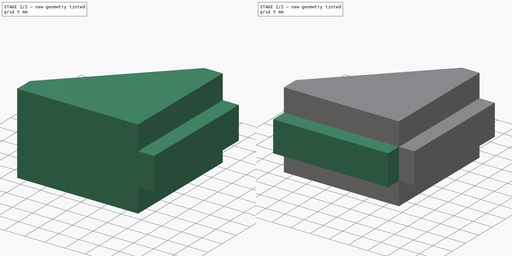
[diagram: build sequence overview — one tinted view per stage of 2, left to right]
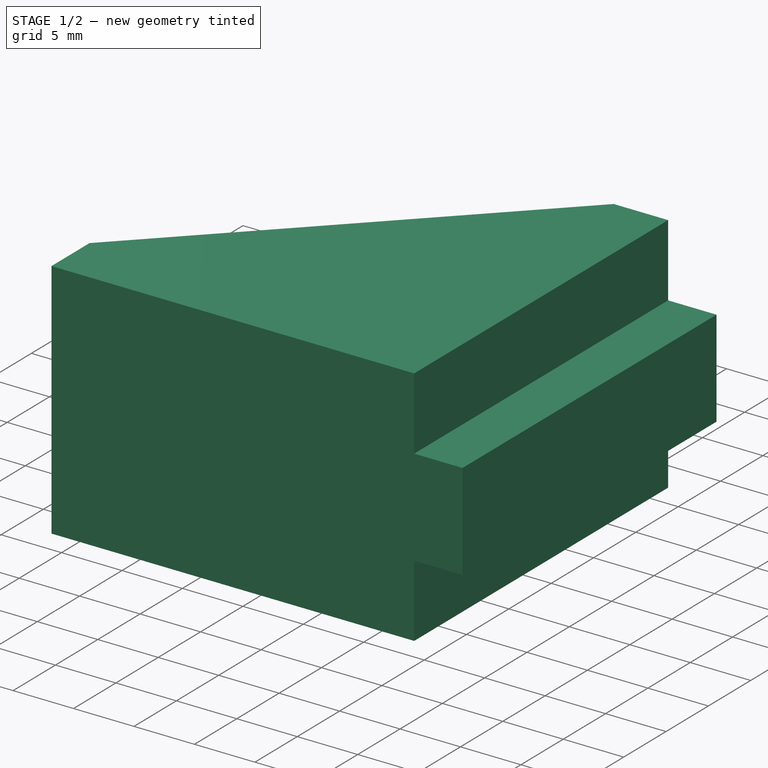
[diagram: stage 1 of 2 — iso view after this stage's code; geometry added in this stage tinted green]
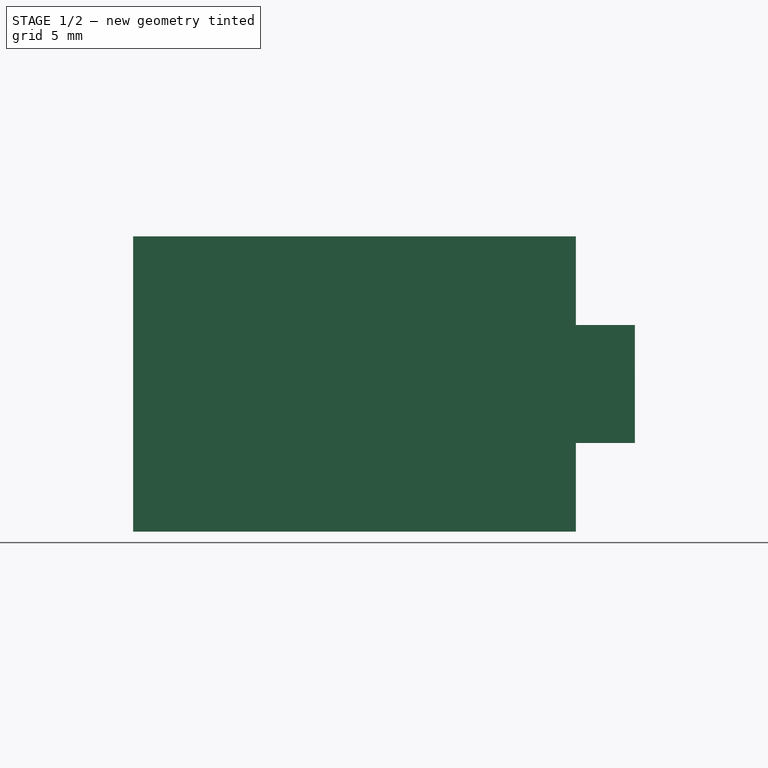
[diagram: stage 1 of 2 — front view after this stage's code; geometry added in this stage tinted green]
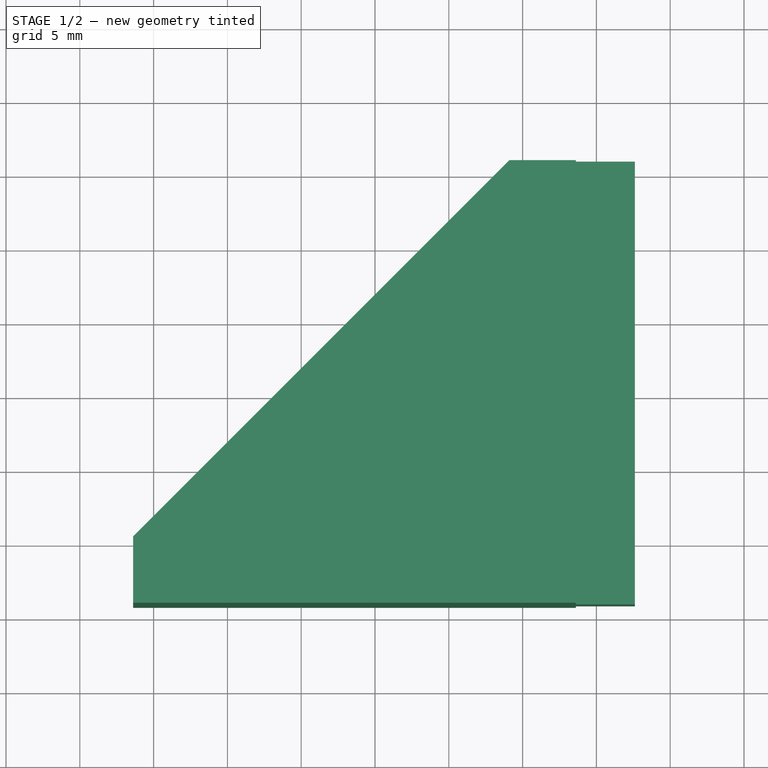
[diagram: stage 1 of 2 — top view after this stage's code; geometry added in this stage tinted green]
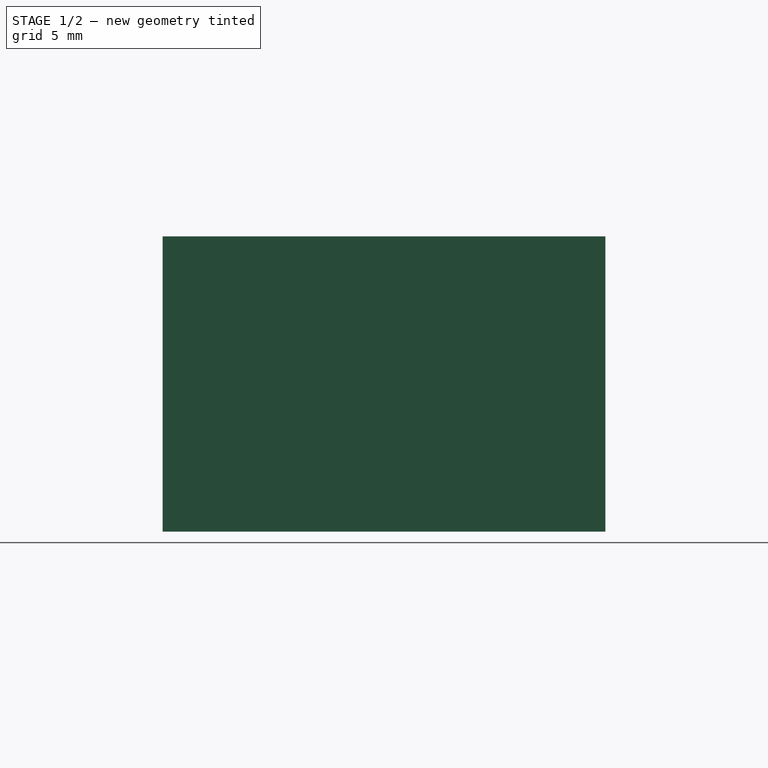
[diagram: stage 1 of 2 — right view after this stage's code; geometry added in this stage tinted green]
FCSTD DOCUMENT  (FreeCAD 0.19R24291 (Git))
Label: PLD1_profile_holder_20_6
License: All rights reserved
LicenseURL: http://en.wikipedia.org/wiki/All_rights_reserved
objects: Sketcher::SketchObject×3, PartDesign::Pad×3, PartDesign::Body×1
note: 10 computed .brp shape members not serialized (recipe doc carries the construction recipe); baked Part::Feature solids carry a one-line shape summary decoded from their .brp

FEATURE [Sketcher::SketchObject] Sketch
  FullyConstrained = false
  MapMode = 5
  Support = -> [XY_Plane]
  sketch-geometry (5):
    g0: LineSegment StartX=9.10929 StartY=30.804 StartZ=0 EndX=-16.3907 EndY=5.30396 EndZ=0
    g1: LineSegment StartX=-16.3907 StartY=5.30396 StartZ=0 EndX=-16.3907 EndY=0.803959 EndZ=0
    g2: LineSegment StartX=-16.3907 StartY=0.803959 StartZ=0 EndX=13.6093 EndY=0.803959 EndZ=0
    g3: LineSegment StartX=13.6093 StartY=0.803959 StartZ=0 EndX=13.6093 EndY=30.804 EndZ=0
    g4: LineSegment StartX=13.6093 StartY=30.804 StartZ=0 EndX=9.10929 EndY=30.804 EndZ=0
  constraints (13):
    c: Coincident(g0,g1)
    c: Vertical(g1)
    c: Coincident(g1,g2)
    c: Horizontal(g2)
    c: Coincident(g2,g3)
    c: Vertical(g3)
    c: Coincident(g3,g4)
    c: Coincident(g4,g0)
    c: DistanceY(g2,g3) = 30
    c: DistanceX(g0,g3) = 4.5
    c: DistanceY(g3,g0) = 0
    c: DistanceX(g1,g2) = 30
    c: DistanceY(g1,g0) = 4.5
FEATURE [PartDesign::Pad] Pad
  Direction = (1,1,1)
  Length = 20
  Length2 = 100
  Profile = -> Sketch
  Type = 0
FEATURE [Sketcher::SketchObject] Sketch001
  ExternalGeometry = -> [Pad]
  FullyConstrained = true
  MapMode = 5
  Placement = pos=(13.6093,0,0) rot=(0.57735,0.57735,0.57735;2.0944rad)
  Support = -> [Pad]
  sketch-geometry (4):
    g0: LineSegment StartX=0.803959 StartY=14 StartZ=0 EndX=30.804 EndY=14 EndZ=0
    g1: LineSegment StartX=30.804 StartY=14 StartZ=0 EndX=30.804 EndY=6 EndZ=0
    g2: LineSegment StartX=30.804 StartY=6 StartZ=0 EndX=0.803959 EndY=6 EndZ=0
    g3: LineSegment StartX=0.803959 StartY=6 StartZ=0 EndX=0.803959 EndY=14 EndZ=0
  constraints (12):
    c: Coincident(g0,g1)
    c: Coincident(g1,g2)
    c: Coincident(g2,g3)
    c: Coincident(g3,g0)
    c: Horizontal(g0)
    c: Horizontal(g2)
    c: Vertical(g1)
    c: Vertical(g3)
    c: PointOnObject(g0,g-4)
    c: PointOnObject(g1,g-3)
    c: DistanceY(g-3,g1) = 6
    c: DistanceY(g0,g-3) = 6
FEATURE [PartDesign::Pad] Pad001
  BaseFeature = -> Pad
  Direction = (1,1,1)
  Length = 4
  Length2 = 100
  Profile = -> Sketch001
  Type = 0
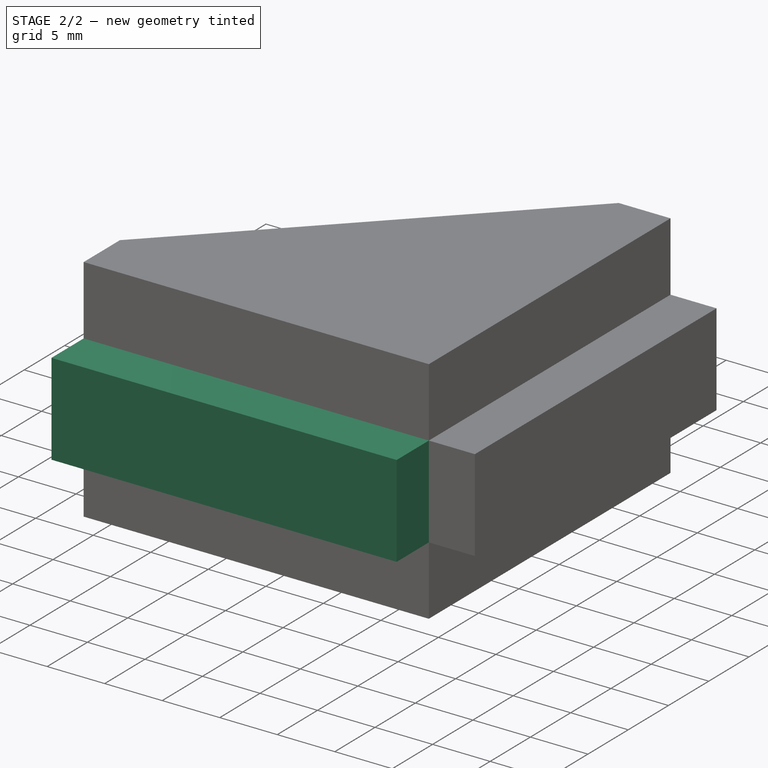
[diagram: stage 2 of 2 — iso view after this stage's code; geometry added in this stage tinted green]
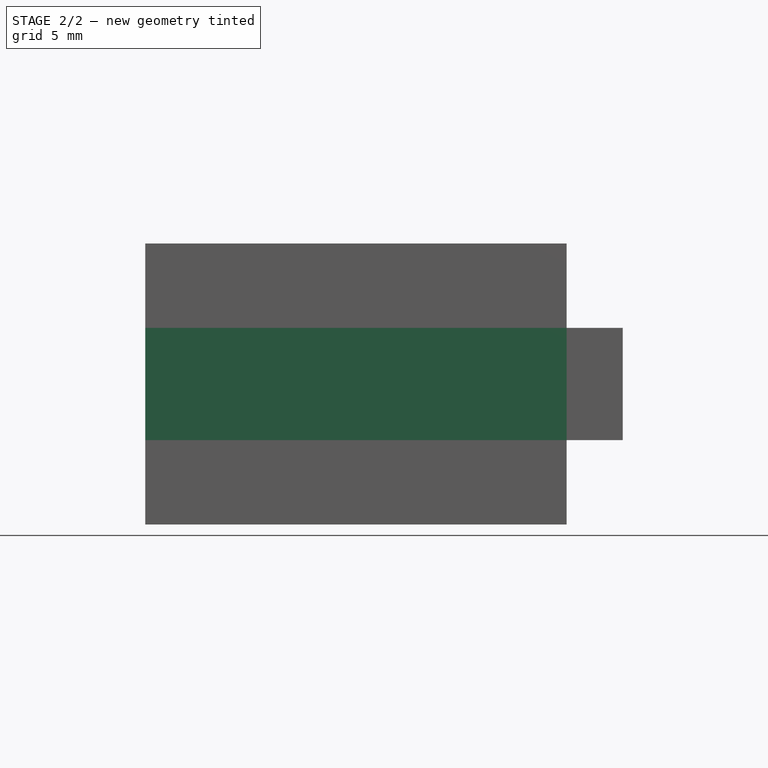
[diagram: stage 2 of 2 — front view after this stage's code; geometry added in this stage tinted green]
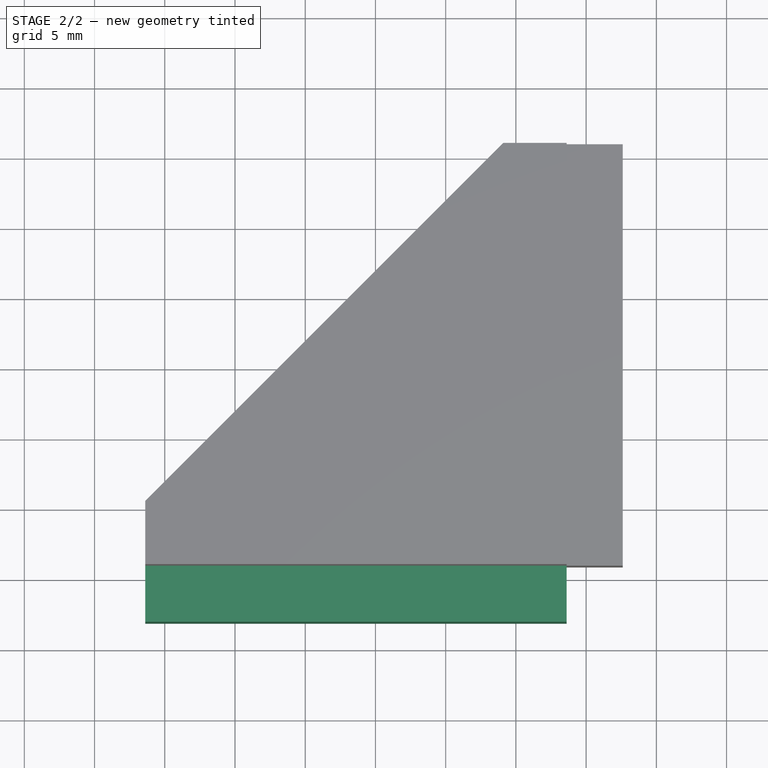
[diagram: stage 2 of 2 — top view after this stage's code; geometry added in this stage tinted green]
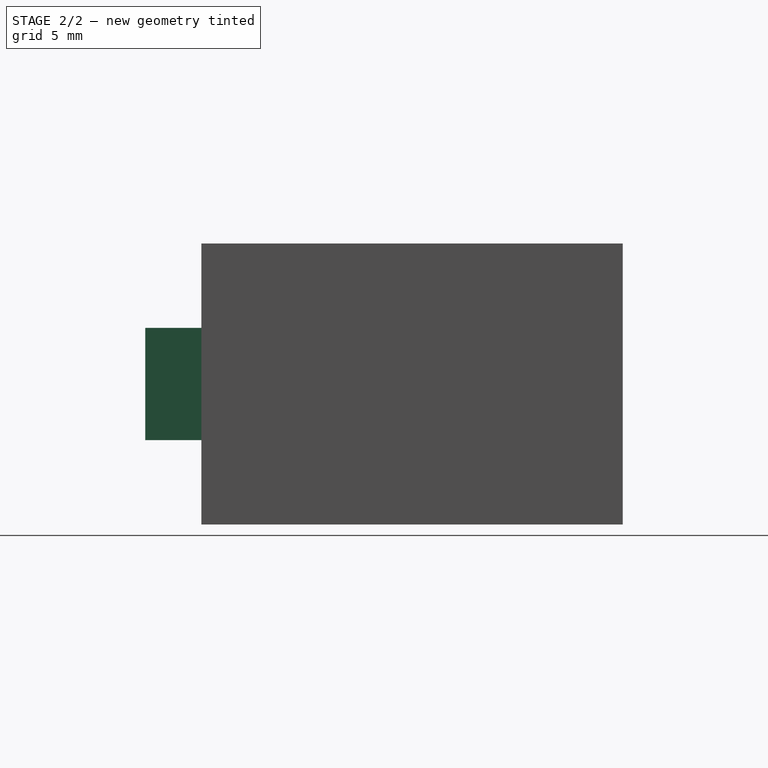
[diagram: stage 2 of 2 — right view after this stage's code; geometry added in this stage tinted green]
FEATURE [Sketcher::SketchObject] Sketch002
  ExternalGeometry = -> [Pad001]
  FullyConstrained = true
  MapMode = 5
  Placement = pos=(0,0.803959,0) rot=(1,0,0;1.5708rad)
  Support = -> [Pad001]
  sketch-geometry (4):
    g0: LineSegment StartX=13.6093 StartY=14 StartZ=0 EndX=-16.3907 EndY=14 EndZ=0
    g1: LineSegment StartX=-16.3907 StartY=14 StartZ=0 EndX=-16.3907 EndY=6 EndZ=0
    g2: LineSegment StartX=-16.3907 StartY=6 StartZ=0 EndX=13.6093 EndY=6 EndZ=0
    g3: LineSegment StartX=13.6093 StartY=6 StartZ=0 EndX=13.6093 EndY=14 EndZ=0
  constraints (11):
    c: Coincident(g0,g1)
    c: Coincident(g1,g2)
    c: Coincident(g2,g3)
    c: Coincident(g3,g0)
    c: Horizontal(g0)
    c: Horizontal(g2)
    c: Vertical(g1)
    c: Vertical(g3)
    c: Coincident(g0,g-4)
    c: PointOnObject(g1,g-6)
    c: DistanceY(g-5,g2) = 0
FEATURE [PartDesign::Pad] Pad002
  BaseFeature = -> Pad001
  Direction = (1,1,1)
  Length = 4
  Length2 = 100
  Profile = -> Sketch002
  Type = 0
FEATURE [PartDesign::Body] Body
  Group = -> [Sketch,Pad,Sketch001,Pad001,Sketch002,Pad002]
  Origin = -> Origin
  Tip = -> Pad002
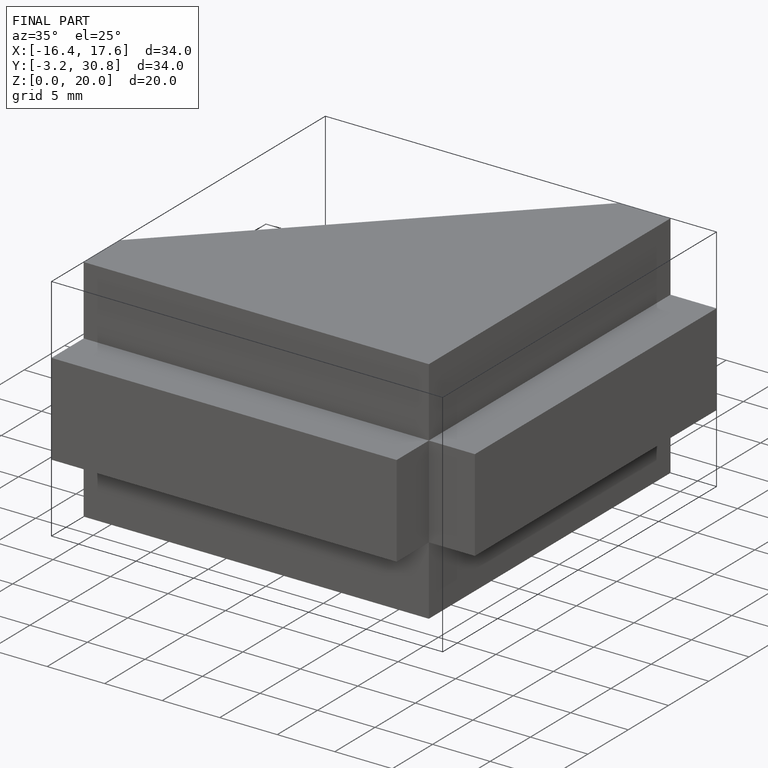
[diagram: finished part — iso view with bounding-box wireframe]
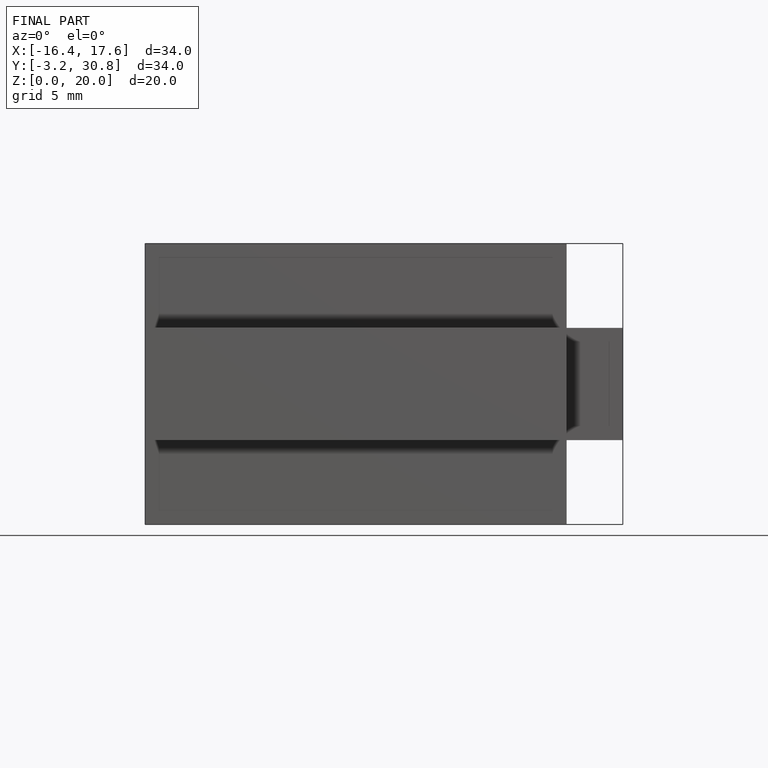
[diagram: finished part — front view with bounding-box wireframe]
